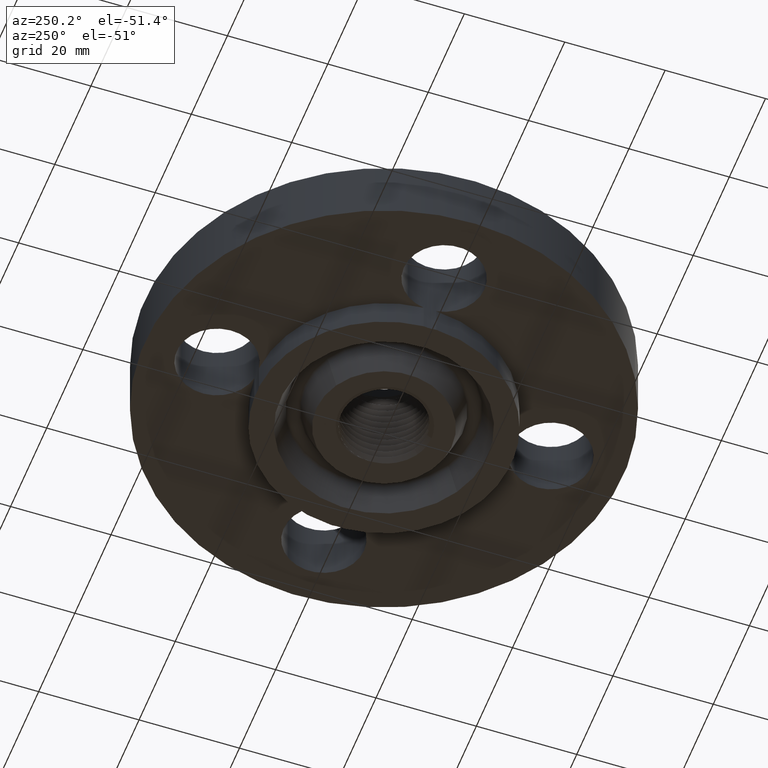
[diagram: clean part render]
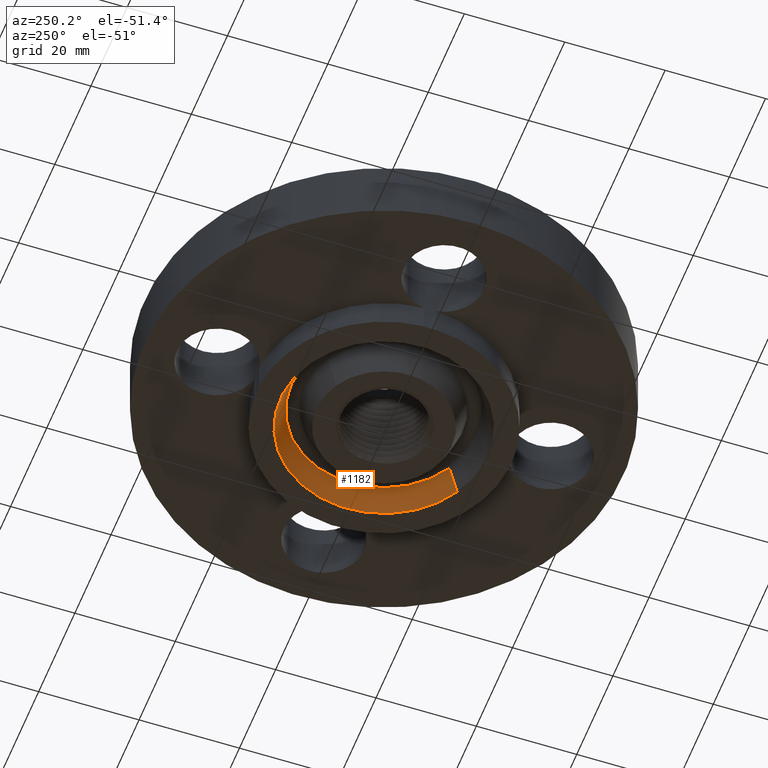
[diagram: same view with one face highlighted and labeled with its STEP entity id]
A machine part, auxiliary view. The second image highlights one B-rep face of the part: STEP entity #1182.
In plain terms, the highlighted conical surface has half-angle 23 deg.
Its self-contained STEP definition (entity closure, byte-faithful):
#425=AXIS2_PLACEMENT_3D('Circle Axis2P3D',#423,#424,$) ;
#1117=AXIS2_PLACEMENT_3D('Cone Axis2P3D',#1114,#1115,#1116) ;
#1138=AXIS2_PLACEMENT_3D('Circle Axis2P3D',#1136,#1137,$) ;
#418=CARTESIAN_POINT('Vertex',(0.389557221394,-0.713079710667,-0.218800000001)) ;
#420=CARTESIAN_POINT('Vertex',(-0.389557221394,0.713079710667,-0.218800000001)) ;
#423=CARTESIAN_POINT('Axis2P3D Location',(-3.49676543189E-017,1.39870617276E-016,-0.218800000001)) ;
#1083=CARTESIAN_POINT('Vertex',(-0.348911377556,0.638677992583,-0.0190701156784)) ;
#1085=CARTESIAN_POINT('Vertex',(0.348911377556,-0.638677992583,-0.0190701156784)) ;
#1114=CARTESIAN_POINT('Axis2P3D Location',(0.,0.,-0.0190701156784)) ;
#1119=CARTESIAN_POINT('Line Origine',(-0.369234299475,0.675878851625,-0.11893505784)) ;
#1124=CARTESIAN_POINT('Line Origine',(0.369234299475,-0.675878851625,-0.11893505784)) ;
#1136=CARTESIAN_POINT('Axis2P3D Location',(0.,0.,-0.0190701156784)) ;
#424=DIRECTION('Axis2P3D Direction',(0.,0.,-0.0393700787402)) ;
#1115=DIRECTION('Axis2P3D Direction',(-0.,-0.,-0.0393700787402)) ;
#1116=DIRECTION('Axis2P3D XDirection',(-0.0188750212049,0.0345504945626,0.)) ;
#1120=DIRECTION('Vector Direction',(-0.00737505833565,0.0134999537303,-0.0362403485611)) ;
#1125=DIRECTION('Vector Direction',(0.00737505833565,-0.0134999537303,-0.0362403485611)) ;
#1137=DIRECTION('Axis2P3D Direction',(0.,0.,0.0393700787402)) ;
#1121=VECTOR('Line Direction',#1120,0.0393700787402) ;
#1126=VECTOR('Line Direction',#1125,0.0393700787402) ;
#1177=ORIENTED_EDGE('',*,*,#427,.T.) ;
#1178=ORIENTED_EDGE('',*,*,#1128,.T.) ;
#1179=ORIENTED_EDGE('',*,*,#1140,.T.) ;
#1180=ORIENTED_EDGE('',*,*,#1123,.F.) ;
#1182=ADVANCED_FACE('PartBody',(#1181),#1118,.F.) ;
#426=CIRCLE('generated circle',#425,0.812550000003) ;
#1139=CIRCLE('generated circle',#1138,0.727769694064) ;
#1118=CONICAL_SURFACE('Cone',#1117,0.727769694064,0.401425727959) ;
#427=EDGE_CURVE('',#421,#419,#426,.T.) ;
#1123=EDGE_CURVE('',#421,#1084,#1122,.F.) ;
#1128=EDGE_CURVE('',#419,#1086,#1127,.F.) ;
#1140=EDGE_CURVE('',#1086,#1084,#1139,.T.) ;
#1176=EDGE_LOOP('',(#1177,#1178,#1179,#1180)) ;
#1181=FACE_OUTER_BOUND('',#1176,.T.) ;
#1122=LINE('Line',#1119,#1121) ;
#1127=LINE('Line',#1124,#1126) ;
#419=VERTEX_POINT('',#418) ;
#421=VERTEX_POINT('',#420) ;
#1084=VERTEX_POINT('',#1083) ;
#1086=VERTEX_POINT('',#1085) ;